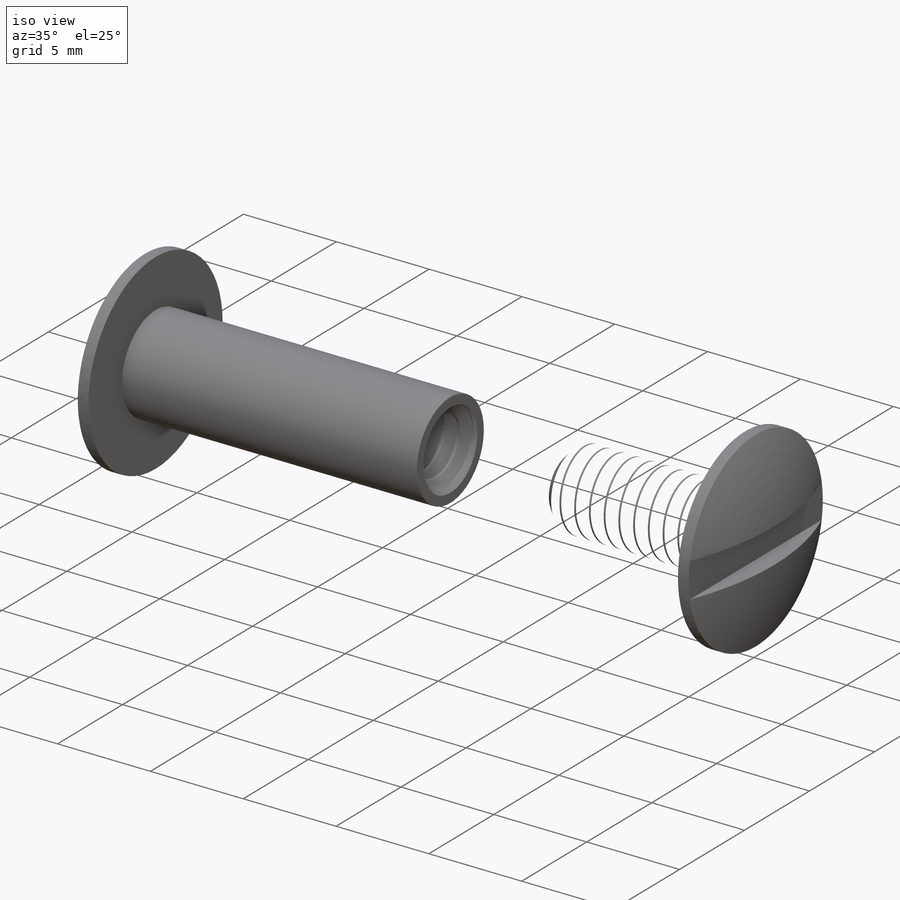
[diagram: iso view]
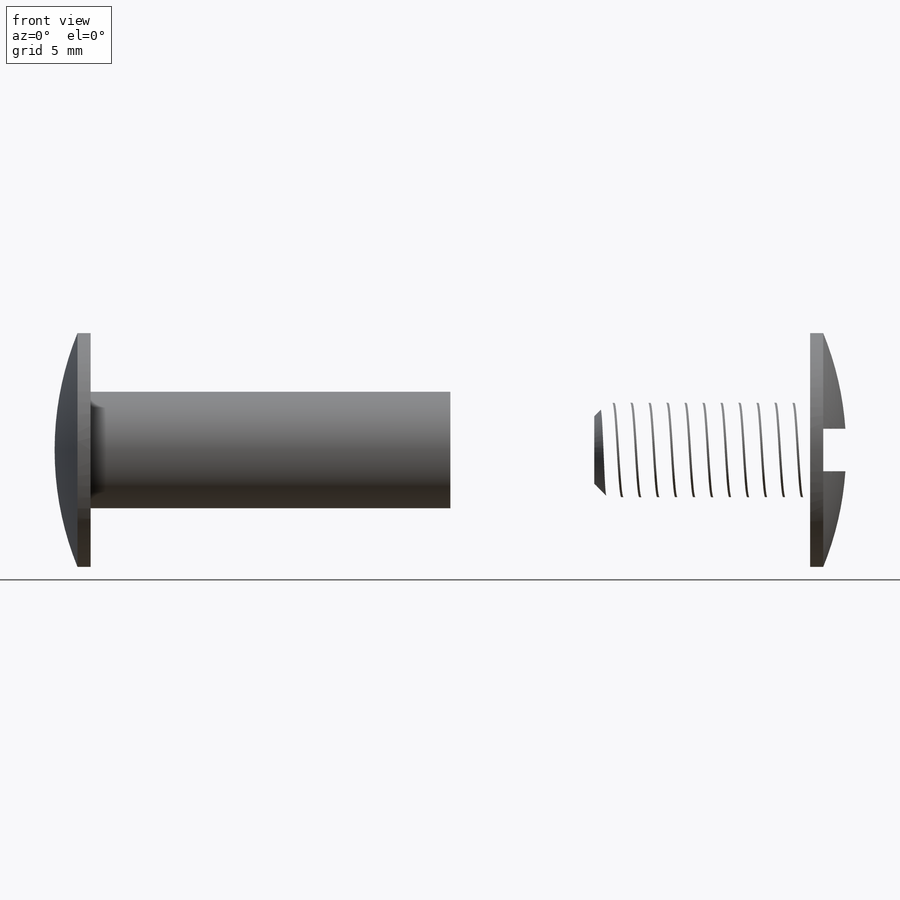
[diagram: front view]
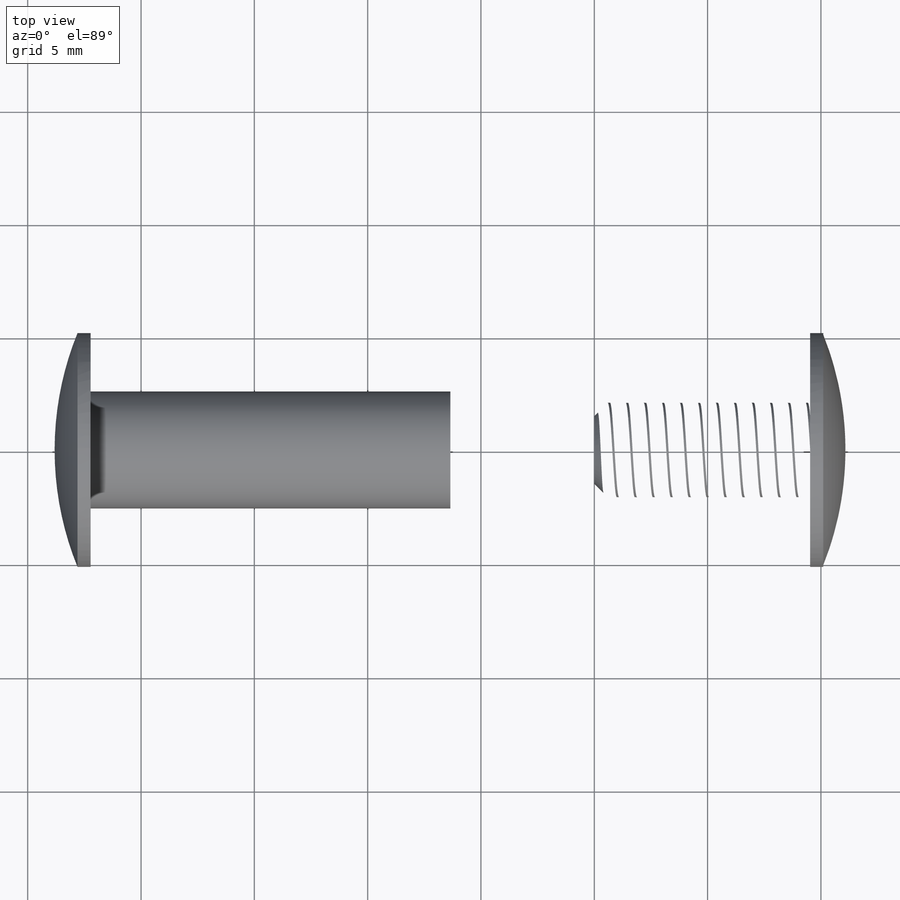
[diagram: top view]
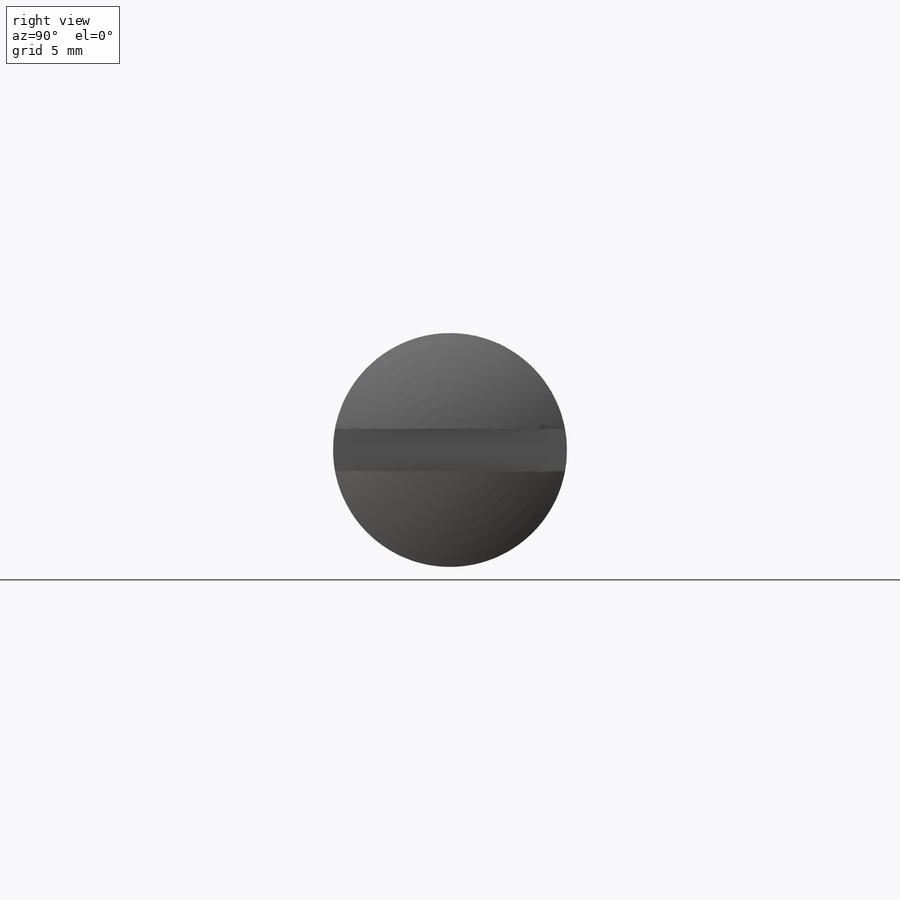
[diagram: right view]
SOLIDWORKS PART (.sldprt)
format: sldprt  version: not decoded by parser v0  size: 1,258,496 bytes
history: native  units: mm
features: sketch x12, plane x3, extrude x3, cut_extrude x3, helix x2, sweep x2, boolean_combine x2, material x1, chamfer x1, revolve x1, mirror x1 (+15 scaffold rows collapsed)
feature tree (46):
  scaffold x15  (default folders/planes/origin — collapsed)
  material  "Material <not specified>"
  sketch  "Sketch1"  dims[Screw Dia=4.1656mm Screw Length=9.525mm Head Dia=~10.31875mm Head Height=1.5875mm D1=6.35mm Barrel Dia=~5.159375mm Thread Depth=9.525mm D4=~10.961571mm Barrel Length=15.875mm D2=~1.984375mm]
  plane  "Plane1"
  sketch  "Sketch2"
  extrude  "Boss-Extrude1"  [1 undecoded]
  sketch  "Sketch4"  dims[D1=0.0mm]
  helix  "Helix/Spiral1"  Pitch=10.31875mm
  chamfer  "Chamfer1"  Distance=0.595313mm Angle=45deg
  sketch  "Sketch5"  dims[c1.D1=~0.099219mm c1.D2=~0.396875mm c1.D3=~1.892904mm c2.D3=~146.432147deg c3.D3=~1.892904mm c4.D3=60.0deg]
  sweep  "Cut-Sweep1"
  sketch  "Sketch6"  dims[D1=~0.577273mm Flat Dia=3.9624mm]
  revolve  "Revolve1"  Angle=360deg
  plane  "Plane2"
  mirror  "Mirror1"
  sketch  "Sketch17"  dims[D1=~1.87452mm]
  cut_extrude  "Cut-Extrude5"  [1 undecoded]
  plane  "Plane3"
  sketch  "Sketch11"
  extrude  "Boss-Extrude3"  [1 undecoded]
  sketch  "Sketch12"  dims[D1=0.0mm]
  helix  "Helix/Spiral2"  Pitch=10.31875mm
  sketch  "Sketch13"
  sweep  "Sweep1"
  sketch  "Sketch14"
  cut_extrude  "Cut-Extrude3"  [1 undecoded]
  sketch  "Sketch15"
  cut_extrude  "Cut-Extrude4"  [1 undecoded]
  sketch  "Sketch16"
  extrude  "Boss-Extrude4"  [1 undecoded]
  boolean_combine  "Combine1"
  boolean_combine  "Combine2"
decode coverage: 10 of 27 modeling features carry decoded parameters
note: ~ marks probable driven/reference dimensions
note: 6 parameter values undecoded
summary: no parameter record found for 6 features
note: suppression state not decoded; provenance and decode notes live in map.json
